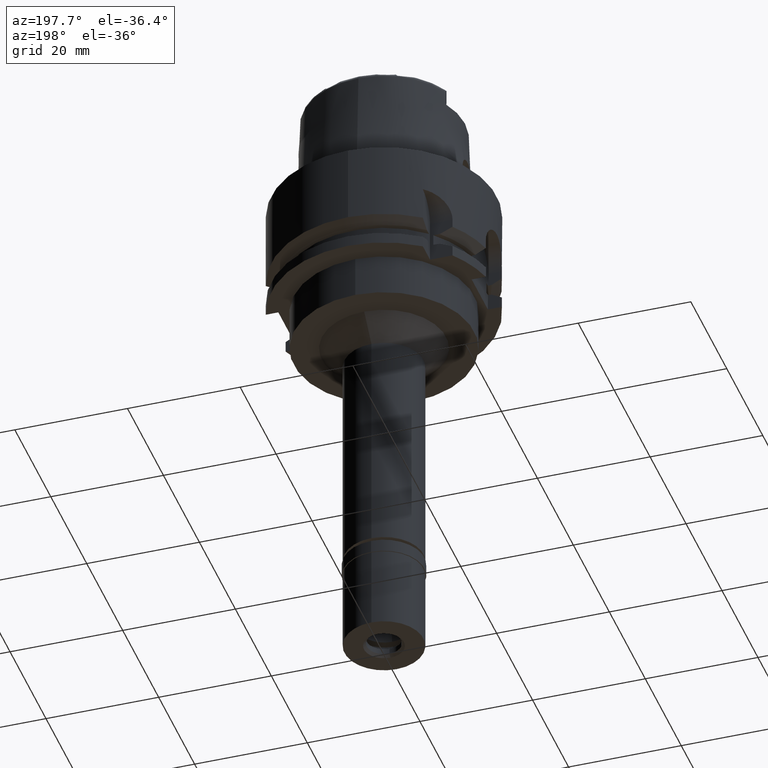
[diagram: clean part render]
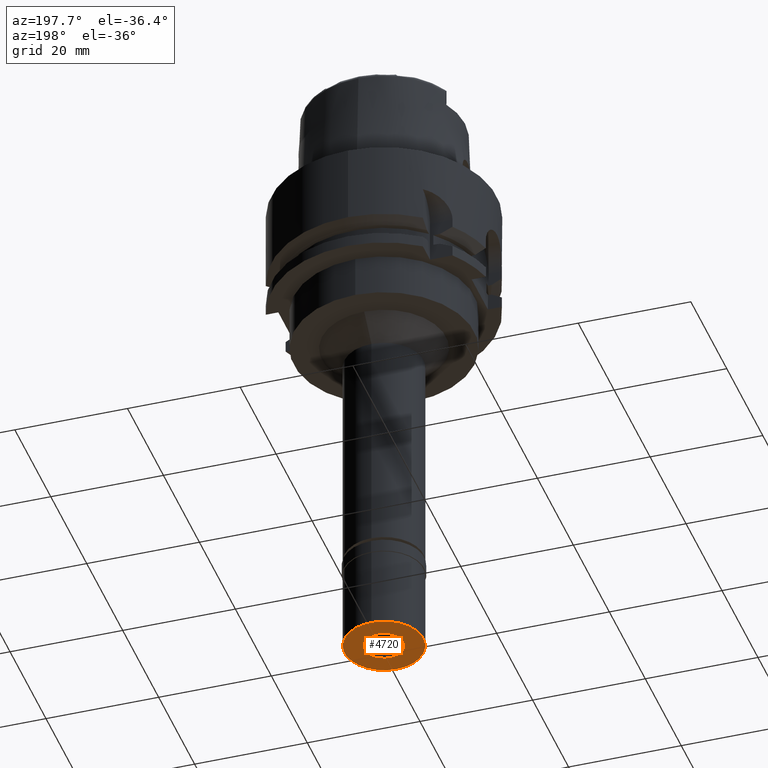
[diagram: same view with one face highlighted and labeled with its STEP entity id]
A machine part, auxiliary view. The second image highlights one B-rep face of the part: STEP entity #4720.
In plain terms, the highlighted planar face has unit normal (0, 0, 1).
Its self-contained STEP definition (entity closure, byte-faithful):
#5 = FACE_BOUND ( 'NONE', #5098, .T. ) ;
#66 = DIRECTION ( 'NONE',  ( 0.0000000000000000000, 0.0000000000000000000, 1.000000000000000000 ) ) ;
#188 = CARTESIAN_POINT ( 'NONE',  ( 0.0000000000000000000, 3.550000000000000266, -17.00000000000000000 ) ) ;
#372 = DIRECTION ( 'NONE',  ( 0.0000000000000000000, 1.000000000000000000, 0.0000000000000000000 ) ) ;
#373 = ORIENTED_EDGE ( 'NONE', *, *, #1861, .F. ) ;
#461 = DIRECTION ( 'NONE',  ( 0.0000000000000000000, 0.0000000000000000000, 1.000000000000000000 ) ) ;
#465 = EDGE_CURVE ( 'NONE', #633, #1668, #752, .T. ) ;
#598 = EDGE_LOOP ( 'NONE', ( #1610, #1172 ) ) ;
#633 = VERTEX_POINT ( 'NONE', #5247 ) ;
#752 = CIRCLE ( 'NONE', #2049, 3.550000000000000266 ) ;
#810 = ORIENTED_EDGE ( 'NONE', *, *, #465, .F. ) ;
#909 = AXIS2_PLACEMENT_3D ( 'NONE', #4925, #461, #2105 ) ;
#1172 = ORIENTED_EDGE ( 'NONE', *, *, #5017, .F. ) ;
#1496 = AXIS2_PLACEMENT_3D ( 'NONE', #2585, #5007, #1752 ) ;
#1610 = ORIENTED_EDGE ( 'NONE', *, *, #4291, .F. ) ;
#1641 = PLANE ( 'NONE',  #909 ) ;
#1668 = VERTEX_POINT ( 'NONE', #188 ) ;
#1752 = DIRECTION ( 'NONE',  ( 0.0000000000000000000, 1.000000000000000000, 0.0000000000000000000 ) ) ;
#1861 = EDGE_CURVE ( 'NONE', #1668, #633, #2768, .T. ) ;
#2049 = AXIS2_PLACEMENT_3D ( 'NONE', #3782, #3858, #4608 ) ;
#2100 = CARTESIAN_POINT ( 'NONE',  ( 0.0000000000000000000, 0.0000000000000000000, -17.00000000000000000 ) ) ;
#2105 = DIRECTION ( 'NONE',  ( 1.000000000000000000, 0.0000000000000000000, 0.0000000000000000000 ) ) ;
#2234 = CARTESIAN_POINT ( 'NONE',  ( 0.0000000000000000000, 0.0000000000000000000, -17.00000000000000000 ) ) ;
#2345 = AXIS2_PLACEMENT_3D ( 'NONE', #2100, #4087, #372 ) ;
#2353 = CARTESIAN_POINT ( 'NONE',  ( 0.0000000000000000000, 7.000000000000000000, -17.00000000000000000 ) ) ;
#2585 = CARTESIAN_POINT ( 'NONE',  ( 0.0000000000000000000, 0.0000000000000000000, -17.00000000000000000 ) ) ;
#2617 = VERTEX_POINT ( 'NONE', #2673 ) ;
#2673 = CARTESIAN_POINT ( 'NONE',  ( 0.0000000000000000000, -7.000000000000000000, -17.00000000000000000 ) ) ;
#2768 = CIRCLE ( 'NONE', #2345, 3.550000000000000266 ) ;
#3686 = FACE_OUTER_BOUND ( 'NONE', #598, .T. ) ;
#3782 = CARTESIAN_POINT ( 'NONE',  ( 0.0000000000000000000, 0.0000000000000000000, -17.00000000000000000 ) ) ;
#3858 = DIRECTION ( 'NONE',  ( 0.0000000000000000000, 0.0000000000000000000, -1.000000000000000000 ) ) ;
#4087 = DIRECTION ( 'NONE',  ( 0.0000000000000000000, 0.0000000000000000000, -1.000000000000000000 ) ) ;
#4092 = CIRCLE ( 'NONE', #4947, 7.000000000000000000 ) ;
#4155 = DIRECTION ( 'NONE',  ( 0.0000000000000000000, -1.000000000000000000, 0.0000000000000000000 ) ) ;
#4291 = EDGE_CURVE ( 'NONE', #4836, #2617, #4753, .T. ) ;
#4608 = DIRECTION ( 'NONE',  ( 0.0000000000000000000, -1.000000000000000000, 0.0000000000000000000 ) ) ;
#4720 = ADVANCED_FACE ( 'NONE', ( #3686, #5 ), #1641, .F. ) ;
#4753 = CIRCLE ( 'NONE', #1496, 7.000000000000000000 ) ;
#4836 = VERTEX_POINT ( 'NONE', #2353 ) ;
#4925 = CARTESIAN_POINT ( 'NONE',  ( 0.0000000000000000000, 0.0000000000000000000, -17.00000000000000000 ) ) ;
#4947 = AXIS2_PLACEMENT_3D ( 'NONE', #2234, #66, #4155 ) ;
#5007 = DIRECTION ( 'NONE',  ( 0.0000000000000000000, 0.0000000000000000000, 1.000000000000000000 ) ) ;
#5017 = EDGE_CURVE ( 'NONE', #2617, #4836, #4092, .T. ) ;
#5098 = EDGE_LOOP ( 'NONE', ( #373, #810 ) ) ;
#5247 = CARTESIAN_POINT ( 'NONE',  ( 0.0000000000000000000, -3.550000000000000266, -17.00000000000000000 ) ) ;